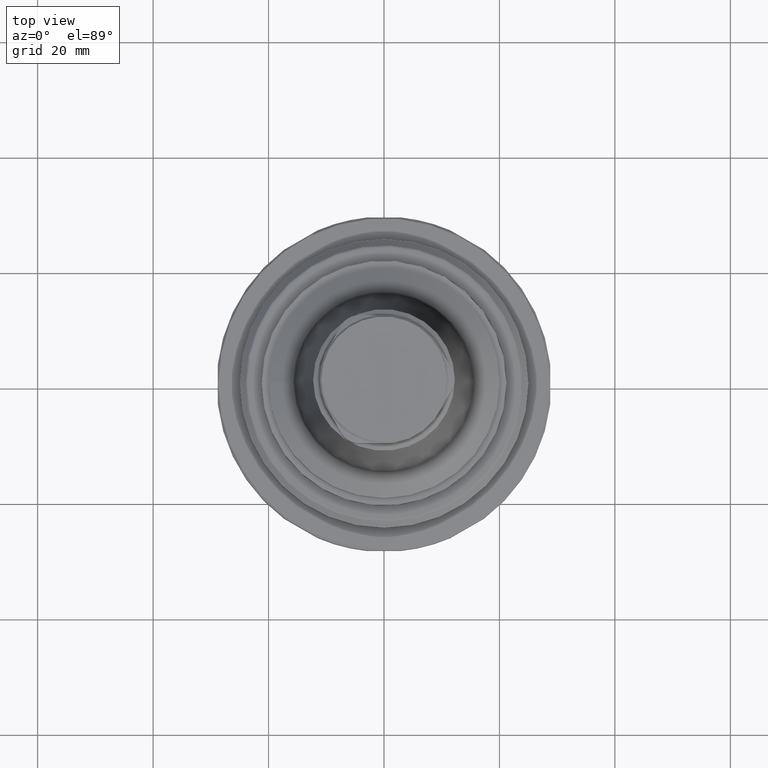
[diagram: clean part render]
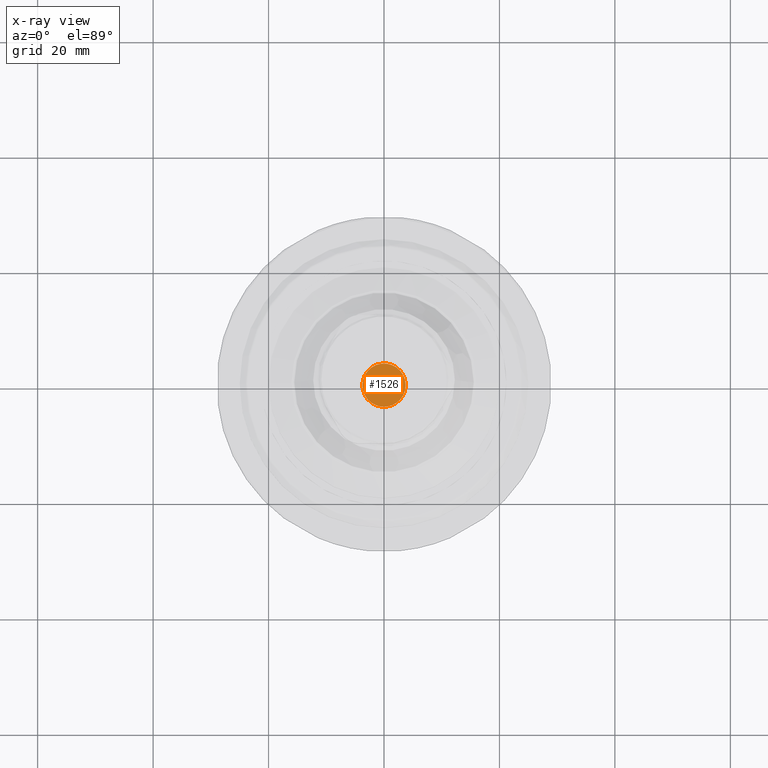
[diagram: x-ray — body ghosted, one internal face saturated and labeled with its STEP entity id]
A machine part, top view, then the same camera in x-ray: the body is ghosted and one INTERNAL B-rep face — a face not visible from any outside direction — is saturated and labeled: STEP entity #1526.
In plain terms, the highlighted planar face has unit normal (0, 0, 1).
Its self-contained STEP definition (entity closure, byte-faithful):
#682=ORIENTED_EDGE('',*,*,#892,.T.);
#892=EDGE_CURVE('',#1039,#1039,#1116,.T.);
#1039=VERTEX_POINT('',#2764);
#1116=CIRCLE('',#1717,3.75);
#1249=EDGE_LOOP('',(#682));
#1387=FACE_BOUND('',#1249,.T.);
#1430=PLANE('',#1718);
#1526=ADVANCED_FACE('',(#1387),#1430,.F.);
#1717=AXIS2_PLACEMENT_3D('',#2763,#2144,#2145);
#1718=AXIS2_PLACEMENT_3D('',#2765,#2146,#2147);
#2144=DIRECTION('',(0.,0.,-1.));
#2145=DIRECTION('',(-1.,0.,0.));
#2146=DIRECTION('',(0.,0.,1.));
#2147=DIRECTION('',(1.,0.,0.));
#2763=CARTESIAN_POINT('',(0.,0.,-14.));
#2764=CARTESIAN_POINT('',(-3.75,0.,-14.));
#2765=CARTESIAN_POINT('',(0.,0.,-14.));